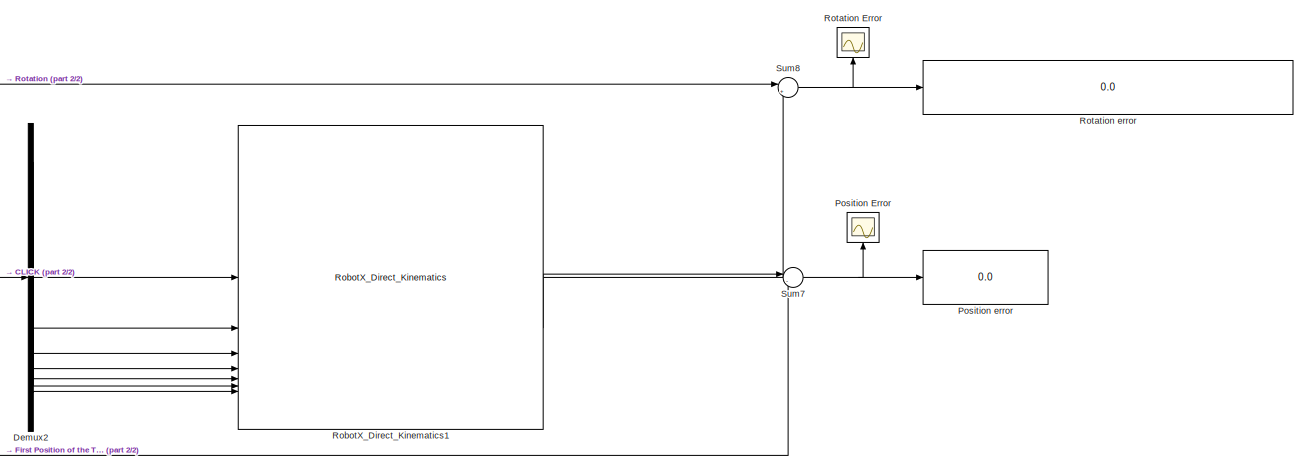
[diagram: root canvas - part 1/2, middle right region]
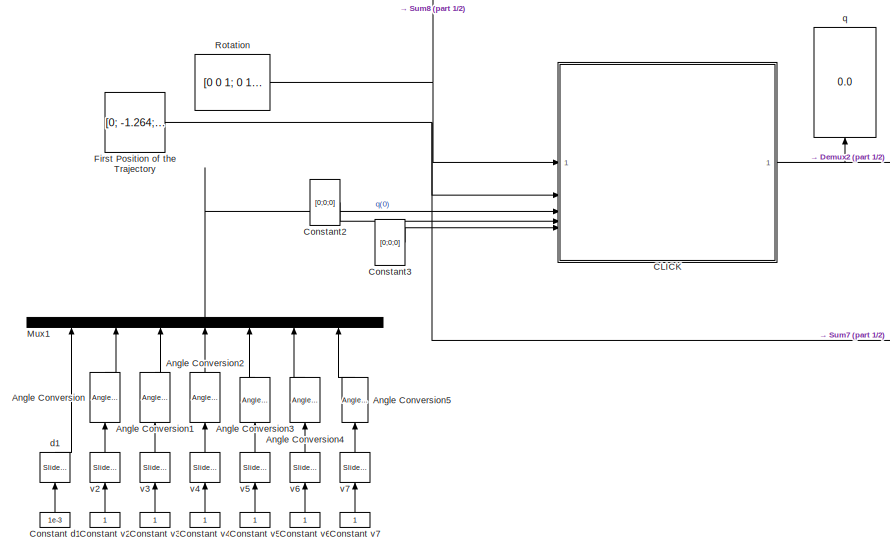
[diagram: root canvas - part 2/2, left side, full height]
MODEL slx_5b4242b34fa3
KIND model
CONFIG AbsTol = auto
CONFIG EnableMultiTasking = off
CONFIG FixedStep = auto
CONFIG MaxStep = 1e-3
CONFIG MinStep = 1e-5
CONFIG RelTol = 1e-3
CONFIG SampleTimeConstraint = Unconstrained
CONFIG SolverName = ode45
CONFIG StartTime = 0.0
CONFIG StopTime = 100
BLOCK [Reference] Angle Conversion  REF=aerolibconvert2/Angle Conversion
  NameLocation = right
  SourceBlock = aerolibconvert2/Angle Conversion
  SourceType = Angle Conversion
BLOCK [Reference] Angle Conversion1  REF=aerolibconvert2/Angle Conversion
  NameLocation = right
  SourceBlock = aerolibconvert2/Angle Conversion
  SourceType = Angle Conversion
BLOCK [Reference] Angle Conversion2  REF=aerolibconvert2/Angle Conversion
  NameLocation = right
  SourceBlock = aerolibconvert2/Angle Conversion
  SourceType = Angle Conversion
BLOCK [Reference] Angle Conversion3  REF=aerolibconvert2/Angle Conversion
  NameLocation = right
  SourceBlock = aerolibconvert2/Angle Conversion
  SourceType = Angle Conversion
BLOCK [Reference] Angle Conversion4  REF=aerolibconvert2/Angle Conversion
  NameLocation = right
  SourceBlock = aerolibconvert2/Angle Conversion
  SourceType = Angle Conversion
BLOCK [Reference] Angle Conversion5  REF=aerolibconvert2/Angle Conversion
  NameLocation = right
  SourceBlock = aerolibconvert2/Angle Conversion
  SourceType = Angle Conversion
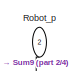
[diagram: CLICK - part 1/4, top left region]
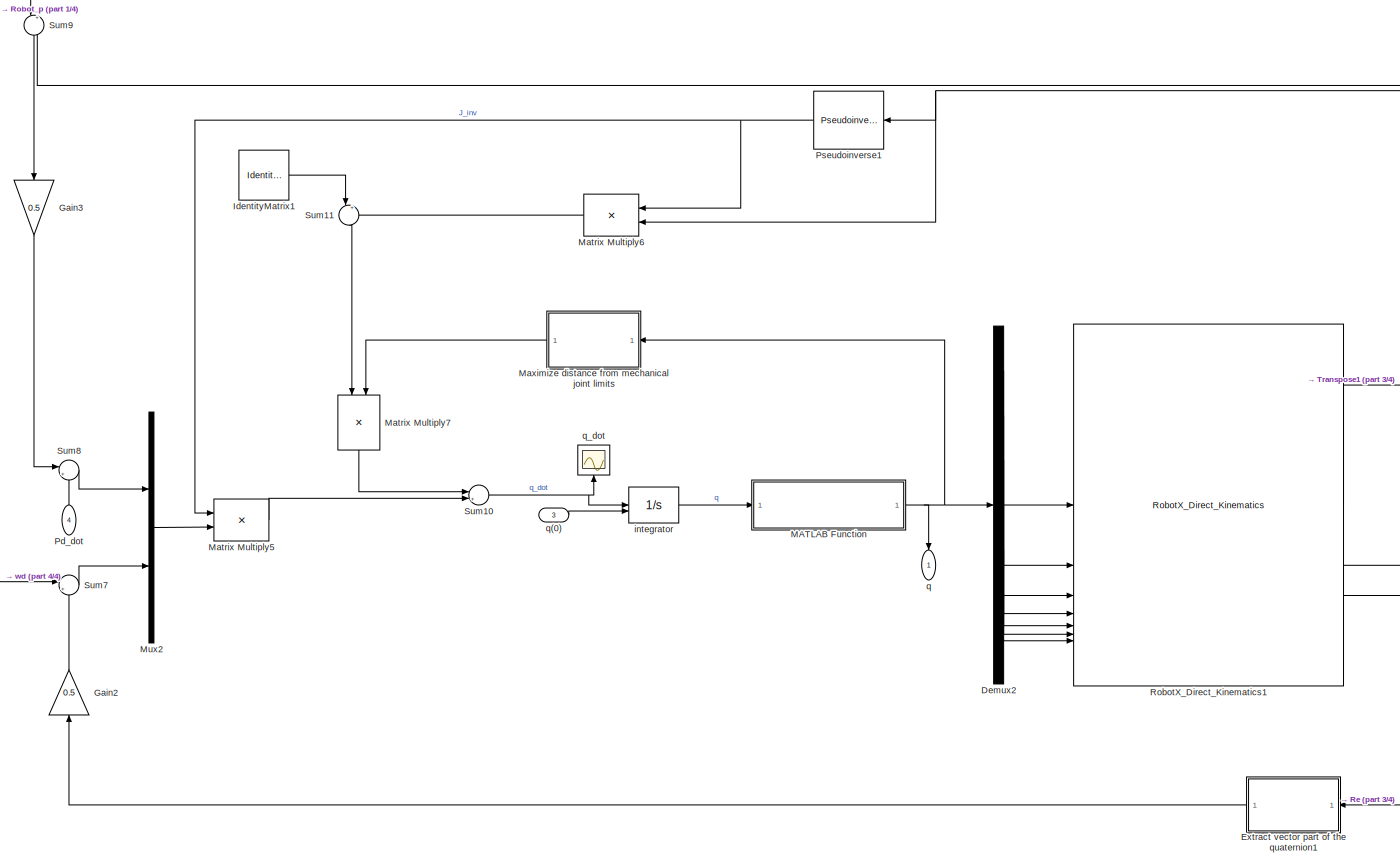
[diagram: CLICK - part 2/4, center side, full height]
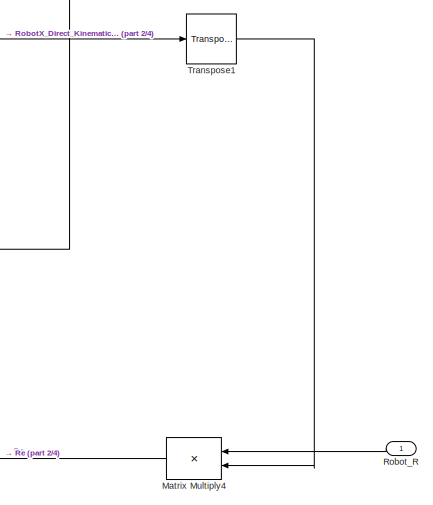
[diagram: CLICK - part 3/4, bottom right region]
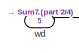
[diagram: CLICK - part 4/4, bottom left region]
BLOCK [SubSystem] CLICK
BLOCK [Demux] CLICK/Demux2
  Outputs = 7
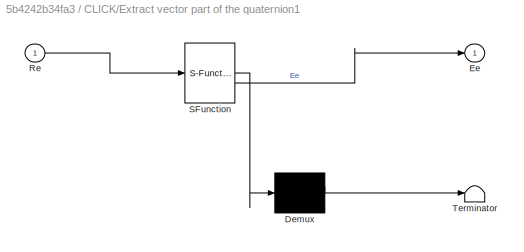
BLOCK [SubSystem] CLICK/Extract vector part of the quaternion1
  ErrorFcn = Stateflow.Translate.translate
  NameLocation = top
  PermitHierarchicalResolution = ExplicitOnly
  SFBlockType = MATLAB Function
  TreatAsAtomicUnit = on
BLOCK [Demux] CLICK/Extract vector part of the quaternion1/ Demux 
  Outputs = 1
BLOCK [S-Function] CLICK/Extract vector part of the quaternion1/ SFunction 
  EnableBusSupport = on
  FunctionName = sf_sfun
  PortCounts = [1 2]
  SFcnIsStateOwnerBlock = off
  SFunctionDeploymentMode = off
  Tag = Stateflow S-Function 2
BLOCK [Terminator] CLICK/Extract vector part of the quaternion1/ Terminator 
BLOCK [Outport] CLICK/Extract vector part of the quaternion1/Ee
BLOCK [Inport] CLICK/Extract vector part of the quaternion1/Re
BLOCK [Gain] CLICK/Gain2
  Gain = 0.5
  NameLocation = right
BLOCK [Gain] CLICK/Gain3
  Gain = 0.5
  NameLocation = right
BLOCK [IdentityMatrix] CLICK/IdentityMatrix1
  OutputDimensions = 7
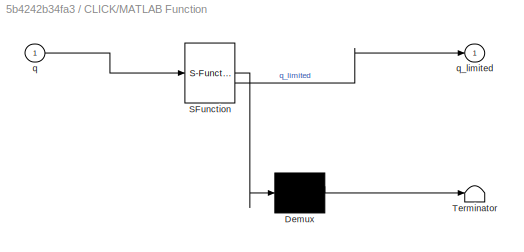
BLOCK [SubSystem] CLICK/MATLAB Function
  ErrorFcn = Stateflow.Translate.translate
  PermitHierarchicalResolution = ExplicitOnly
  SFBlockType = MATLAB Function
  TreatAsAtomicUnit = on
BLOCK [Demux] CLICK/MATLAB Function/ Demux 
  Outputs = 1
BLOCK [S-Function] CLICK/MATLAB Function/ SFunction 
  EnableBusSupport = on
  FunctionName = sf_sfun
  PortCounts = [1 2]
  SFcnIsStateOwnerBlock = off
  SFunctionDeploymentMode = off
  Tag = Stateflow S-Function 10
BLOCK [Terminator] CLICK/MATLAB Function/ Terminator 
BLOCK [Inport] CLICK/MATLAB Function/q
BLOCK [Outport] CLICK/MATLAB Function/q_limited
BLOCK [Product] CLICK/Matrix Multiply4
  Multiplication = Matrix(*)
BLOCK [Product] CLICK/Matrix Multiply5
  Multiplication = Matrix(*)
BLOCK [Product] CLICK/Matrix Multiply6
  Multiplication = Matrix(*)
BLOCK [Product] CLICK/Matrix Multiply7
  Multiplication = Matrix(*)
  NameLocation = left
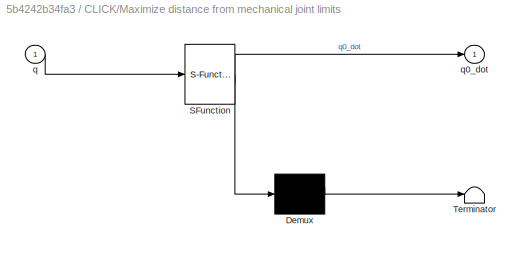
BLOCK [SubSystem] CLICK/Maximize distance from mechanical joint limits
  ErrorFcn = Stateflow.Translate.translate
  NameLocation = top
  PermitHierarchicalResolution = ExplicitOnly
  SFBlockType = MATLAB Function
  TreatAsAtomicUnit = on
BLOCK [Demux] CLICK/Maximize distance from mechanical joint limits/ Demux 
  Outputs = 1
BLOCK [S-Function] CLICK/Maximize distance from mechanical joint limits/ SFunction 
  EnableBusSupport = on
  FunctionName = sf_sfun
  PortCounts = [1 2]
  SFcnIsStateOwnerBlock = off
  SFunctionDeploymentMode = off
  Tag = Stateflow S-Function 7
BLOCK [Terminator] CLICK/Maximize distance from mechanical joint limits/ Terminator 
BLOCK [Inport] CLICK/Maximize distance from mechanical joint limits/q
BLOCK [Outport] CLICK/Maximize distance from mechanical joint limits/q0_dot
BLOCK [Mux] CLICK/Mux2
  DisplayOption = bar
  Inputs = 2
BLOCK [Inport] CLICK/Pd_dot
  NameLocation = right
  Port = 4
BLOCK [Reference] CLICK/Pseudoinverse1  REF=dspinverses/Pseudoinverse
  SourceBlock = dspinverses/Pseudoinverse
  SourceType = Pseudoinverse
BLOCK [Reference] CLICK/RobotX_Direct_Kinematics1  REF=RobotX_Lib/RobotX_Direct_Kinematics
  SourceBlock = RobotX_Lib/RobotX_Direct_Kinematics
  SourceType = SubSystem
BLOCK [Inport] CLICK/Robot_R
  NameLocation = top
BLOCK [Inport] CLICK/Robot_p
  NameLocation = left
  Port = 2
BLOCK [Sum] CLICK/Sum10
  Inputs = |++
BLOCK [Sum] CLICK/Sum11
  Inputs = |+-
  NameLocation = right
BLOCK [Sum] CLICK/Sum7
  Inputs = |++
BLOCK [Sum] CLICK/Sum8
  Inputs = |++
  NameLocation = top
BLOCK [Sum] CLICK/Sum9
  Inputs = |+-
  NameLocation = right
BLOCK [Reference] CLICK/Transpose1  REF=matrix_library/Transpose
  LibrarySourceBlock = simulink/Matrix\nOperations/Transpose
  SourceBlock = matrix_library/Transpose
  SourceType = Transpose
BLOCK [Integrator] CLICK/integrator
  InitialConditionSource = external
BLOCK [Outport] CLICK/q
  NameLocation = left
BLOCK [Inport] CLICK/q(0)
  Port = 3
BLOCK [Scope] CLICK/q_dot
  Floating = off
  NameLocation = right
  NumInputPorts = 1
  ScopeSpecificationString = Simulink.scopes.TimeScopeBlockCfg('CurrentConfiguration', extmgr.ConfigurationSet(extmgr.Configuration('Core','General UI',true),extmgr.Configuration('Core','Source UI',true),extmgr.Configuration('Sources','WiredSimulink',true,'DataLoggingVariableName','ScopeData1'),extmgr.Configuration('Visuals','Time Domain',true,'SerializedDisplays',{struct('MinYLimReal','-731787.58871','MaxYLimReal','936935.07...<+1577ch>
BLOCK [Inport] CLICK/wd
  Port = 5
BLOCK [Constant] Constant d1
  NameLocation = right
  Value = 1e-3
BLOCK [Constant] Constant v2
  NameLocation = right
BLOCK [Constant] Constant v3
  NameLocation = right
BLOCK [Constant] Constant v4
  NameLocation = right
BLOCK [Constant] Constant v5
  NameLocation = right
BLOCK [Constant] Constant v6
  NameLocation = right
BLOCK [Constant] Constant v7
  NameLocation = right
BLOCK [Constant] Constant2
  Value = [0;0;0]
  VectorParams1D = off
BLOCK [Constant] Constant3
  Value = [0;0;0]
  VectorParams1D = off
BLOCK [Demux] Demux2
  Outputs = 7
BLOCK [Constant] First Position of the Trajectory
  Value = [0; -1.264; 11.18]
  VectorParams1D = off
BLOCK [Mux] Mux1
  DisplayOption = bar
  Inputs = 7
  NameLocation = right
BLOCK [Scope] Position Error
  Floating = off
  NameLocation = right
  NumInputPorts = 1
  ScopeSpecificationString = Simulink.scopes.TimeScopeBlockCfg('CurrentConfiguration', extmgr.ConfigurationSet(extmgr.Configuration('Core','General UI',true),extmgr.Configuration('Core','Source UI',true),extmgr.Configuration('Sources','WiredSimulink',true,'DataLoggingVariableName','ScopeData2'),extmgr.Configuration('Visuals','Time Domain',true,'SerializedDisplays',{struct('MinYLimReal','-3.60375','MaxYLimReal','11.94375','YLa...<+1549ch>
BLOCK [Display] Position error
  Decimation = 1
  Format = decimal (Stored Integer)
BLOCK [Reference] RobotX_Direct_Kinematics1  REF=RobotX_Lib/RobotX_Direct_Kinematics
  SourceBlock = RobotX_Lib/RobotX_Direct_Kinematics
  SourceType = SubSystem
BLOCK [Constant] Rotation
  Value = [0 0 1; 0 1 0; -1 0 0]
BLOCK [Scope] Rotation Error
  Floating = off
  NameLocation = right
  NumInputPorts = 1
  ScopeSpecificationString = Simulink.scopes.TimeScopeBlockCfg('CurrentConfiguration', extmgr.ConfigurationSet(extmgr.Configuration('Core','General UI',true),extmgr.Configuration('Core','Source UI',true),extmgr.Configuration('Sources','WiredSimulink',true,'DataLoggingVariableName','ScopeData3'),extmgr.Configuration('Visuals','Time Domain',true,'SerializedDisplays',{struct('MinYLimReal','-2.4793','MaxYLimReal','2.47249','YLabe...<+1595ch>
BLOCK [Display] Rotation error
  Decimation = 1
  Format = decimal (Stored Integer)
BLOCK [Sum] Sum7
  Inputs = |-+
BLOCK [Sum] Sum8
  Inputs = |+-
BLOCK [Reference] d1  REF=simulink/Math
Operations/Slider
Gain
  NameLocation = right
  SourceBlock = simulink/Math\nOperations/Slider\nGain
  SourceType = Slider Gain
BLOCK [Display] q
  Decimation = 1
  Format = decimal (Stored Integer)
  NameLocation = right
BLOCK [Reference] v2  REF=simulink/Math
Operations/Slider
Gain
  NameLocation = right
  SourceBlock = simulink/Math\nOperations/Slider\nGain
  SourceType = Slider Gain
BLOCK [Reference] v3  REF=simulink/Math
Operations/Slider
Gain
  NameLocation = right
  SourceBlock = simulink/Math\nOperations/Slider\nGain
  SourceType = Slider Gain
BLOCK [Reference] v4  REF=simulink/Math
Operations/Slider
Gain
  NameLocation = right
  SourceBlock = simulink/Math\nOperations/Slider\nGain
  SourceType = Slider Gain
BLOCK [Reference] v5  REF=simulink/Math
Operations/Slider
Gain
  NameLocation = right
  SourceBlock = simulink/Math\nOperations/Slider\nGain
  SourceType = Slider Gain
BLOCK [Reference] v6  REF=simulink/Math
Operations/Slider
Gain
  NameLocation = right
  SourceBlock = simulink/Math\nOperations/Slider\nGain
  SourceType = Slider Gain
BLOCK [Reference] v7  REF=simulink/Math
Operations/Slider
Gain
  NameLocation = right
  SourceBlock = simulink/Math\nOperations/Slider\nGain
  SourceType = Slider Gain
LINE Angle Conversion1:1 -> Mux1:3
LINE Angle Conversion2:1 -> Mux1:4
LINE Angle Conversion3:1 -> Mux1:5
LINE Angle Conversion4:1 -> Mux1:6
LINE Angle Conversion5:1 -> Mux1:7
LINE Angle Conversion:1 -> Mux1:2
LINE CLICK/Demux2:1 -> CLICK/RobotX_Direct_Kinematics1:1
LINE CLICK/Demux2:2 -> CLICK/RobotX_Direct_Kinematics1:2
LINE CLICK/Demux2:3 -> CLICK/RobotX_Direct_Kinematics1:3
LINE CLICK/Demux2:4 -> CLICK/RobotX_Direct_Kinematics1:4
LINE CLICK/Demux2:5 -> CLICK/RobotX_Direct_Kinematics1:5
LINE CLICK/Demux2:6 -> CLICK/RobotX_Direct_Kinematics1:6
LINE CLICK/Demux2:7 -> CLICK/RobotX_Direct_Kinematics1:7
LINE CLICK/Extract vector part of the quaternion1:1 -> CLICK/Gain2:1
LINE CLICK/Gain2:1 -> CLICK/Sum7:2
LINE CLICK/Gain3:1 -> CLICK/Sum8:1
LINE CLICK/IdentityMatrix1:1 -> CLICK/Sum11:1
NET CLICK/MATLAB Function:1 -> CLICK/Demux2:1, CLICK/Maximize distance from mechanical joint limits:1, CLICK/q:1
LINE CLICK/Matrix Multiply4:1 -> CLICK/Extract vector part of the quaternion1:1
LINE CLICK/Matrix Multiply5:1 -> CLICK/Sum10:2
LINE CLICK/Matrix Multiply6:1 -> CLICK/Sum11:2
LINE CLICK/Matrix Multiply7:1 -> CLICK/Sum10:1
LINE CLICK/Maximize distance from mechanical joint limits:1 -> CLICK/Matrix Multiply7:2
LINE CLICK/Mux2:1 -> CLICK/Matrix Multiply5:2
LINE CLICK/Pd_dot:1 -> CLICK/Sum8:2
NET CLICK/Pseudoinverse1:1 -> CLICK/Matrix Multiply5:1, CLICK/Matrix Multiply6:1
LINE CLICK/RobotX_Direct_Kinematics1:1 -> CLICK/Transpose1:1
LINE CLICK/RobotX_Direct_Kinematics1:2 -> CLICK/Sum9:2
NET CLICK/RobotX_Direct_Kinematics1:3 -> CLICK/Matrix Multiply6:2, CLICK/Pseudoinverse1:1
LINE CLICK/Robot_R:1 -> CLICK/Matrix Multiply4:1
LINE CLICK/Robot_p:1 -> CLICK/Sum9:1
NET CLICK/Sum10:1 -> CLICK/integrator:1, CLICK/q_dot:1
LINE CLICK/Sum11:1 -> CLICK/Matrix Multiply7:1
LINE CLICK/Sum7:1 -> CLICK/Mux2:2
LINE CLICK/Sum8:1 -> CLICK/Mux2:1
LINE CLICK/Sum9:1 -> CLICK/Gain3:1
LINE CLICK/Transpose1:1 -> CLICK/Matrix Multiply4:2
LINE CLICK/integrator:1 -> CLICK/MATLAB Function:1
LINE CLICK/q(0):1 -> CLICK/integrator:2
LINE CLICK/wd:1 -> CLICK/Sum7:1
NET CLICK:1 -> Demux2:1, q:1
LINE Constant d1:1 -> d1:1
LINE Constant v2:1 -> v2:1
LINE Constant v3:1 -> v3:1
LINE Constant v4:1 -> v4:1
LINE Constant v5:1 -> v5:1
LINE Constant v6:1 -> v6:1
LINE Constant v7:1 -> v7:1
LINE Constant2:1 -> CLICK:4
LINE Constant3:1 -> CLICK:5
LINE Demux2:1 -> RobotX_Direct_Kinematics1:1
LINE Demux2:2 -> RobotX_Direct_Kinematics1:2
LINE Demux2:3 -> RobotX_Direct_Kinematics1:3
LINE Demux2:4 -> RobotX_Direct_Kinematics1:4
LINE Demux2:5 -> RobotX_Direct_Kinematics1:5
LINE Demux2:6 -> RobotX_Direct_Kinematics1:6
LINE Demux2:7 -> RobotX_Direct_Kinematics1:7
NET First Position of the Trajectory:1 -> CLICK:2, Sum7:2
LINE Mux1:1 -> CLICK:3
LINE RobotX_Direct_Kinematics1:1 -> Sum8:2
LINE RobotX_Direct_Kinematics1:2 -> Sum7:1
NET Rotation:1 -> CLICK:1, Sum8:1
NET Sum7:1 -> Position Error:1, Position error:1
NET Sum8:1 -> Rotation Error:1, Rotation error:1
LINE d1:1 -> Mux1:1
LINE v2:1 -> Angle Conversion:1
LINE v3:1 -> Angle Conversion1:1
LINE v4:1 -> Angle Conversion2:1
LINE v5:1 -> Angle Conversion3:1
LINE v6:1 -> Angle Conversion4:1
LINE v7:1 -> Angle Conversion5:1
note: NET lines group one-source signal fan-out (src -> all destinations, sorted); 1:1 wires keep LINE
CHART CLICK/Maximize distance from mechanical joint limits states=1 transitions=1
  STATE_LABEL 'eML_blk_kernel()'
  STATE_LABEL 'SCRIPT:\nfunction q0_dot = fcn(q)\n    n = length(q);  % Number of elements in q\n\n    q_max = [350; deg2rad(170); deg2rad(45); deg2rad(156); deg2rad(185); deg2rad(120); deg2rad(350)];\n    q_min = [-350; deg2rad(-170); deg2rad(-190); deg2rad(-120); deg2rad(-185); deg2rad(-120); deg2rad(-350)];\n\n    q_dif = q_max - q_min;\n\n    % Manually derive the differentiation\n    w_diff = - (q - q_max) ./ (n * (q...<+50ch>'
CHART CLICK/MATLAB Function states=1 transitions=1
  STATE_LABEL 'eML_blk_kernel()'
  STATE_LABEL 'SCRIPT:\nfunction q_limited = ApplyJointLimits(q)\n    q_max = [350; deg2rad(170); deg2rad(45); deg2rad(156); deg2rad(185); deg2rad(120); deg2rad(350)];\n    q_min = [-350; deg2rad(-170); deg2rad(-190); deg2rad(-120); deg2rad(-185); deg2rad(-120); deg2rad(-350)];\n    \n    q_limited = min(max(q, q_min), q_max);\nend\n'
CHART CLICK/Extract vector part of the quaternion1 states=1 transitions=1
  STATE_LABEL 'eML_blk_kernel()'
  STATE_LABEL 'SCRIPT:\nfunction Ee = fcn(Re)\n    Ee = zeros(3, 1);\n    aux = (Re(1,1) + Re(2,2) + Re(3,3) - 1)/2;\n\n    % Clamp aux to the range [-1, 1]\n    aux = max(-1, min(aux, 1));\n\n    v = acos(aux);\n\n    if sin(v) ~= 0\n        rx = Re(3, 2) - Re(2, 3);\n        ry = Re(1, 3) - Re(3, 1);\n        rz = Re(2, 1) - Re(1, 2);\n        Ee = 1/(2*sin(v)) * [rx; ry; rz];\n    end\nend\n'
CHART  states=0 transitions=0
CHART  states=0 transitions=0
CHART  states=0 transitions=0
